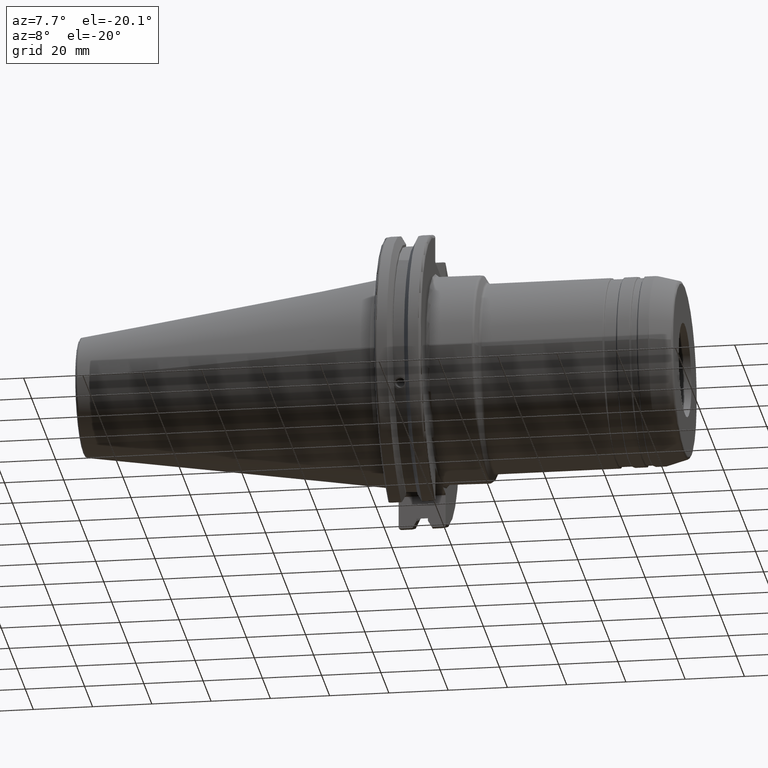
[diagram: clean part render]
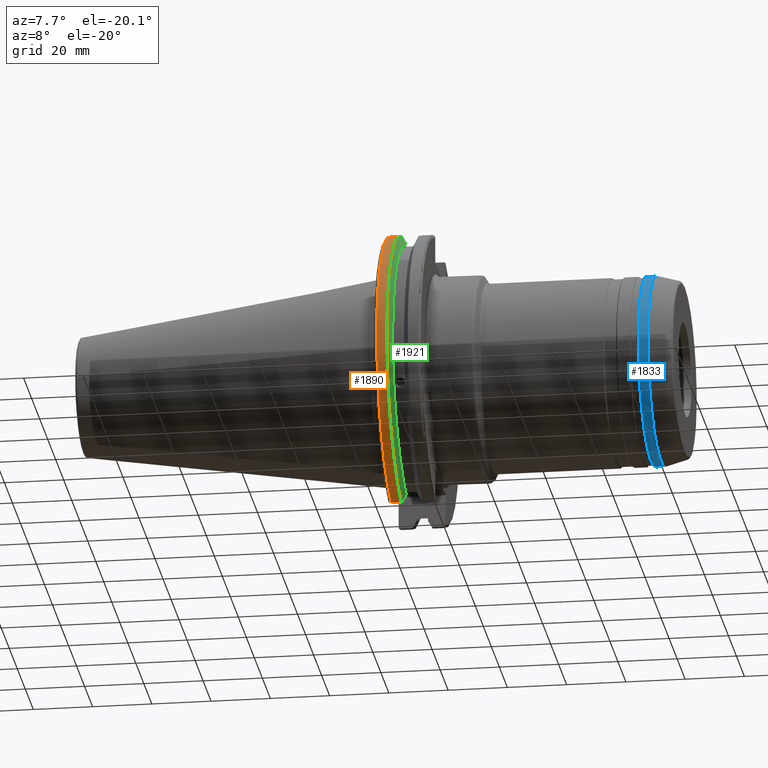
[diagram: same view with three faces highlighted in distinct colors, each labeled with its STEP entity id]
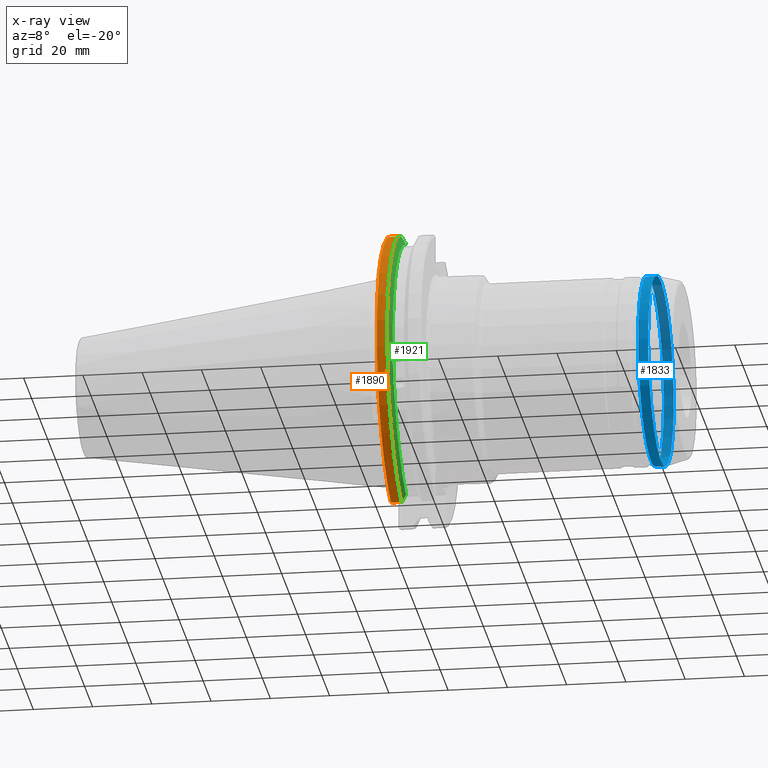
[diagram: x-ray of the same camera — body ghosted, the three highlighted faces saturated]
A machine part, auxiliary view with three faces highlighted in distinct colors.
The next image is the same camera in x-ray (body ghosted, the three faces saturated) — at least one of them is partly hidden behind the body in this view.
Their STEP definitions:

[orange] entity #1890 — the highlighted cylindrical surface (partial cylindrical patch) has radius 49.2125 mm, axis along (1, 0, 0).
#237=FACE_OUTER_BOUND('',#359,.T.);
#359=EDGE_LOOP('',(#1627,#1628,#1629,#1630));
#477=LINE('',#3698,#580);
#478=LINE('',#3704,#581);
#580=VECTOR('',#2627,10.);
#581=VECTOR('',#2630,10.);
#710=CIRCLE('',#2127,49.2125);
#711=CIRCLE('',#2130,49.2125);
#901=VERTEX_POINT('',#3677);
#902=VERTEX_POINT('',#3686);
#903=VERTEX_POINT('',#3697);
#904=VERTEX_POINT('',#3703);
#1160=EDGE_CURVE('',#901,#902,#710,.T.);
#1162=EDGE_CURVE('',#902,#903,#477,.T.);
#1164=EDGE_CURVE('',#904,#901,#478,.T.);
#1165=EDGE_CURVE('',#903,#904,#711,.T.);
#1627=ORIENTED_EDGE('',*,*,#1160,.F.);
#1628=ORIENTED_EDGE('',*,*,#1164,.F.);
#1629=ORIENTED_EDGE('',*,*,#1165,.F.);
#1630=ORIENTED_EDGE('',*,*,#1162,.F.);
#1811=CYLINDRICAL_SURFACE('',#2129,49.2125);
#1890=ADVANCED_FACE('',(#237),#1811,.T.);
#2127=AXIS2_PLACEMENT_3D('',#3687,#2623,#2624);
#2129=AXIS2_PLACEMENT_3D('',#3702,#2628,#2629);
#2130=AXIS2_PLACEMENT_3D('',#3705,#2631,#2632);
#2623=DIRECTION('center_axis',(-1.,0.,0.));
#2624=DIRECTION('ref_axis',(0.,-1.,1.60812264967664E-16));
#2627=DIRECTION('',(1.,0.,0.));
#2628=DIRECTION('center_axis',(1.,0.,0.));
#2629=DIRECTION('ref_axis',(0.,-1.,1.22464679914735E-16));
#2630=DIRECTION('',(-1.,0.,0.));
#2631=DIRECTION('center_axis',(1.,0.,0.));
#2632=DIRECTION('ref_axis',(0.,0.,-1.));
#3677=CARTESIAN_POINT('',(4.175,-13.4317035994433,-47.3440544806494));
#3686=CARTESIAN_POINT('',(4.175,-13.4317035994433,47.3440544806494));
#3687=CARTESIAN_POINT('Origin',(4.175,0.,0.));
#3697=CARTESIAN_POINT('',(7.60799096595127,-13.4317035994433,47.3440544806494));
#3698=CARTESIAN_POINT('',(5.39149548297563,-13.4317035994433,47.3440544806494));
#3702=CARTESIAN_POINT('Origin',(5.39149548297563,0.,0.));
#3703=CARTESIAN_POINT('',(7.60799096595127,-13.4317035994433,-47.3440544806494));
#3704=CARTESIAN_POINT('',(5.39149548297563,-13.4317035994433,-47.3440544806494));
#3705=CARTESIAN_POINT('Origin',(7.60799096595127,0.,0.));

[blue] entity #1833 — the highlighted cylindrical surface (bore or boss wall) has radius 32 mm, axis along (1, 0, 0).
#180=FACE_OUTER_BOUND('',#288,.T.);
#288=EDGE_LOOP('',(#1295,#1296,#1297,#1298,#1299,#1300));
#406=LINE('',#2929,#509);
#509=VECTOR('',#2298,32.);
#636=CIRCLE('',#1995,32.);
#637=CIRCLE('',#1996,32.);
#639=CIRCLE('',#1999,32.);
#640=CIRCLE('',#2000,32.);
#763=VERTEX_POINT('',#2920);
#764=VERTEX_POINT('',#2921);
#765=VERTEX_POINT('',#2926);
#766=VERTEX_POINT('',#2927);
#969=EDGE_CURVE('',#763,#764,#636,.T.);
#970=EDGE_CURVE('',#764,#763,#637,.T.);
#972=EDGE_CURVE('',#765,#766,#639,.T.);
#973=EDGE_CURVE('',#765,#764,#406,.T.);
#974=EDGE_CURVE('',#766,#765,#640,.T.);
#1295=ORIENTED_EDGE('',*,*,#972,.F.);
#1296=ORIENTED_EDGE('',*,*,#973,.T.);
#1297=ORIENTED_EDGE('',*,*,#969,.F.);
#1298=ORIENTED_EDGE('',*,*,#970,.F.);
#1299=ORIENTED_EDGE('',*,*,#973,.F.);
#1300=ORIENTED_EDGE('',*,*,#974,.F.);
#1791=CYLINDRICAL_SURFACE('',#1998,32.);
#1833=ADVANCED_FACE('',(#180),#1791,.T.);
#1995=AXIS2_PLACEMENT_3D('',#2922,#2288,#2289);
#1996=AXIS2_PLACEMENT_3D('',#2923,#2290,#2291);
#1998=AXIS2_PLACEMENT_3D('',#2925,#2294,#2295);
#1999=AXIS2_PLACEMENT_3D('',#2928,#2296,#2297);
#2000=AXIS2_PLACEMENT_3D('',#2930,#2299,#2300);
#2288=DIRECTION('center_axis',(-1.,0.,0.));
#2289=DIRECTION('ref_axis',(0.,-1.,1.83697019872103E-16));
#2290=DIRECTION('center_axis',(-1.,0.,0.));
#2291=DIRECTION('ref_axis',(0.,-1.,1.83697019872103E-16));
#2294=DIRECTION('center_axis',(1.,0.,0.));
#2295=DIRECTION('ref_axis',(0.,1.,0.));
#2296=DIRECTION('center_axis',(1.,0.,0.));
#2297=DIRECTION('ref_axis',(0.,-1.,1.83697019872103E-16));
#2298=DIRECTION('',(-1.,0.,0.));
#2299=DIRECTION('center_axis',(1.,0.,0.));
#2300=DIRECTION('ref_axis',(0.,-1.,1.83697019872103E-16));
#2920=CARTESIAN_POINT('',(90.1196152422707,-3.91886975727153E-15,32.));
#2921=CARTESIAN_POINT('',(90.1196152422707,-32.,-3.91886975727153E-15));
#2922=CARTESIAN_POINT('Origin',(90.1196152422707,0.,0.));
#2923=CARTESIAN_POINT('Origin',(90.1196152422707,0.,0.));
#2925=CARTESIAN_POINT('Origin',(91.7323829491609,0.,0.));
#2926=CARTESIAN_POINT('',(93.4444382661395,-32.,-3.91886975727153E-15));
#2927=CARTESIAN_POINT('',(93.4444382661395,-3.91886975727153E-15,32.));
#2928=CARTESIAN_POINT('Origin',(93.4444382661395,0.,0.));
#2929=CARTESIAN_POINT('',(91.7323829491609,-32.,-3.91886975727153E-15));
#2930=CARTESIAN_POINT('Origin',(93.4444382661395,0.,0.));

[green] entity #1921 — the highlighted conical surface has half-angle 60 deg.
#25=(
BOUNDED_CURVE()
B_SPLINE_CURVE(2,(#3652,#3653,#3654),.UNSPECIFIED.,.F.,.F.)
B_SPLINE_CURVE_WITH_KNOTS((3,3),(0.,0.275823910674601),.UNSPECIFIED.)
CURVE()
GEOMETRIC_REPRESENTATION_ITEM()
RATIONAL_B_SPLINE_CURVE((1.,1.00038235573593,1.00012873636487))
REPRESENTATION_ITEM('')
);
#26=(
BOUNDED_CURVE()
B_SPLINE_CURVE(2,(#3664,#3665,#3666),.UNSPECIFIED.,.F.,.F.)
B_SPLINE_CURVE_WITH_KNOTS((3,3),(0.0558332664507492,0.331657177124507),
 .UNSPECIFIED.)
CURVE()
GEOMETRIC_REPRESENTATION_ITEM()
RATIONAL_B_SPLINE_CURVE((1.00012873636807,1.00038235574544,1.))
REPRESENTATION_ITEM('')
);
#27=(
BOUNDED_CURVE()
B_SPLINE_CURVE(2,(#3699,#3700,#3701),.UNSPECIFIED.,.F.,.F.)
B_SPLINE_CURVE_WITH_KNOTS((3,3),(0.,0.0648240472897372),.UNSPECIFIED.)
CURVE()
GEOMETRIC_REPRESENTATION_ITEM()
RATIONAL_B_SPLINE_CURVE((1.,1.00011477674836,1.00019140645948))
REPRESENTATION_ITEM('')
);
#28=(
BOUNDED_CURVE()
B_SPLINE_CURVE(2,(#3707,#3708,#3709),.UNSPECIFIED.,.F.,.F.)
B_SPLINE_CURVE_WITH_KNOTS((3,3),(0.325260944932348,0.390084992222201),
 .UNSPECIFIED.)
CURVE()
GEOMETRIC_REPRESENTATION_ITEM()
RATIONAL_B_SPLINE_CURVE((1.00019140645916,1.00011477674817,1.))
REPRESENTATION_ITEM('')
);
#106=CONICAL_SURFACE('',#2176,47.8172386482472,1.0471975511966);
#138=B_SPLINE_CURVE_WITH_KNOTS('',3,(#3163,#3164,#3165,#3166,#3167,#3168,
#3169,#3170,#3171,#3172,#3173,#3174,#3175,#3176),.UNSPECIFIED.,.F.,.F.,
(4,2,2,2,2,2,4),(0.426712868358719,0.441644498666906,0.48031331322313,0.518982127779354,
0.557650942335578,0.596319756891801,0.611251387199988),.UNSPECIFIED.);
#268=FACE_OUTER_BOUND('',#393,.T.);
#393=EDGE_LOOP('',(#1767,#1768,#1769,#1770,#1771,#1772,#1773,#1774));
#685=CIRCLE('',#2076,46.4219772964944);
#711=CIRCLE('',#2130,49.2125);
#727=CIRCLE('',#2177,46.4219772964944);
#805=VERTEX_POINT('',#3160);
#806=VERTEX_POINT('',#3162);
#823=VERTEX_POINT('',#3252);
#895=VERTEX_POINT('',#3649);
#896=VERTEX_POINT('',#3651);
#899=VERTEX_POINT('',#3663);
#903=VERTEX_POINT('',#3697);
#904=VERTEX_POINT('',#3703);
#1031=EDGE_CURVE('',#806,#805,#138,.T.);
#1054=EDGE_CURVE('',#806,#823,#685,.T.);
#1149=EDGE_CURVE('',#896,#895,#25,.T.);
#1155=EDGE_CURVE('',#899,#823,#26,.T.);
#1163=EDGE_CURVE('',#903,#895,#27,.T.);
#1165=EDGE_CURVE('',#903,#904,#711,.T.);
#1166=EDGE_CURVE('',#899,#904,#28,.T.);
#1208=EDGE_CURVE('',#896,#805,#727,.T.);
#1767=ORIENTED_EDGE('',*,*,#1031,.T.);
#1768=ORIENTED_EDGE('',*,*,#1208,.F.);
#1769=ORIENTED_EDGE('',*,*,#1149,.T.);
#1770=ORIENTED_EDGE('',*,*,#1163,.F.);
#1771=ORIENTED_EDGE('',*,*,#1165,.T.);
#1772=ORIENTED_EDGE('',*,*,#1166,.F.);
#1773=ORIENTED_EDGE('',*,*,#1155,.T.);
#1774=ORIENTED_EDGE('',*,*,#1054,.F.);
#1921=ADVANCED_FACE('',(#268),#106,.T.);
#2076=AXIS2_PLACEMENT_3D('',#3253,#2470,#2471);
#2130=AXIS2_PLACEMENT_3D('',#3705,#2631,#2632);
#2176=AXIS2_PLACEMENT_3D('',#3821,#2744,#2745);
#2177=AXIS2_PLACEMENT_3D('',#3822,#2746,#2747);
#2470=DIRECTION('center_axis',(1.,0.,0.));
#2471=DIRECTION('ref_axis',(0.,0.,-1.));
#2631=DIRECTION('center_axis',(1.,0.,0.));
#2632=DIRECTION('ref_axis',(0.,0.,-1.));
#2744=DIRECTION('center_axis',(-1.,0.,0.));
#2745=DIRECTION('ref_axis',(0.,-1.,-1.22464679914735E-16));
#2746=DIRECTION('center_axis',(1.,0.,0.));
#2747=DIRECTION('ref_axis',(0.,0.,-1.));
#3160=CARTESIAN_POINT('',(9.2191,-43.9096390749305,-15.0646464421033));
#3162=CARTESIAN_POINT('',(9.2191,-43.3201030900029,-16.684383248648));
#3163=CARTESIAN_POINT('Ctrl Pts',(9.21910000000001,-43.3201030900029,-16.6843832486479));
#3164=CARTESIAN_POINT('Ctrl Pts',(9.20211843903392,-43.3613106941341,-16.6592273018006));
#3165=CARTESIAN_POINT('Ctrl Pts',(9.18608675403322,-43.4012416983557,-16.6326763251437));
#3166=CARTESIAN_POINT('Ctrl Pts',(9.13238673845037,-43.5391037343221,-16.5325130832406));
#3167=CARTESIAN_POINT('Ctrl Pts',(9.09621610663556,-43.6406982153491,-16.441180795372));
#3168=CARTESIAN_POINT('Ctrl Pts',(9.04690868251975,-43.8110833825827,-16.2291323464527));
#3169=CARTESIAN_POINT('Ctrl Pts',(9.0341,-43.8794096049168,-16.10796730316));
#3170=CARTESIAN_POINT('Ctrl Pts',(9.0341,-43.9675796948952,-15.8657219718732));
#3171=CARTESIAN_POINT('Ctrl Pts',(9.04690868251975,-43.9931221605126,-15.7289849146254));
#3172=CARTESIAN_POINT('Ctrl Pts',(9.09621610663556,-43.9989016655819,-15.4570249042867));
#3173=CARTESIAN_POINT('Ctrl Pts',(9.13238673845037,-43.9797830409458,-15.3217566390708));
#3174=CARTESIAN_POINT('Ctrl Pts',(9.18608675403322,-43.9385582852181,-15.1564111356409));
#3175=CARTESIAN_POINT('Ctrl Pts',(9.20211843903392,-43.9250360001461,-15.1104047527575));
#3176=CARTESIAN_POINT('Ctrl Pts',(9.2191,-43.9096390749305,-15.0646464421033));
#3252=CARTESIAN_POINT('',(9.2191,-12.95,-44.5791147973604));
#3253=CARTESIAN_POINT('Origin',(9.2191,0.,0.));
#3649=CARTESIAN_POINT('',(7.88638960562424,-12.95,46.9780755322918));
#3651=CARTESIAN_POINT('',(9.2191,-12.95,44.5791147973604));
#3652=CARTESIAN_POINT('Ctrl Pts',(9.2191,-12.95,44.5791147973604));
#3653=CARTESIAN_POINT('Ctrl Pts',(8.57020449055857,-12.95,45.7494966802148));
#3654=CARTESIAN_POINT('Ctrl Pts',(7.88638960562424,-12.95,46.9780755322918));
#3663=CARTESIAN_POINT('',(7.88638960562425,-12.95,-46.9780755322918));
#3664=CARTESIAN_POINT('Ctrl Pts',(7.88638960562425,-12.95,-46.9780755322918));
#3665=CARTESIAN_POINT('Ctrl Pts',(8.57020449054166,-12.95,-45.7494966802452));
#3666=CARTESIAN_POINT('Ctrl Pts',(9.2191,-12.95,-44.5791147973604));
#3697=CARTESIAN_POINT('',(7.60799096595127,-13.4317035994433,47.3440544806494));
#3699=CARTESIAN_POINT('Ctrl Pts',(7.60799096595126,-13.4317035994433,47.3440544806494));
#3700=CARTESIAN_POINT('Ctrl Pts',(7.7482689666382,-13.1896660169966,47.1601640966265));
#3701=CARTESIAN_POINT('Ctrl Pts',(7.88638960562424,-12.95,46.9780755322918));
#3703=CARTESIAN_POINT('',(7.60799096595127,-13.4317035994433,-47.3440544806494));
#3705=CARTESIAN_POINT('Origin',(7.60799096595127,0.,0.));
#3707=CARTESIAN_POINT('Ctrl Pts',(7.88638960562425,-12.95,-46.9780755322918));
#3708=CARTESIAN_POINT('Ctrl Pts',(7.74826896663813,-13.1896660169967,-47.1601640966265));
#3709=CARTESIAN_POINT('Ctrl Pts',(7.60799096595127,-13.4317035994434,-47.3440544806494));
#3821=CARTESIAN_POINT('Origin',(8.41354548297563,0.,0.));
#3822=CARTESIAN_POINT('Origin',(9.2191,0.,0.));